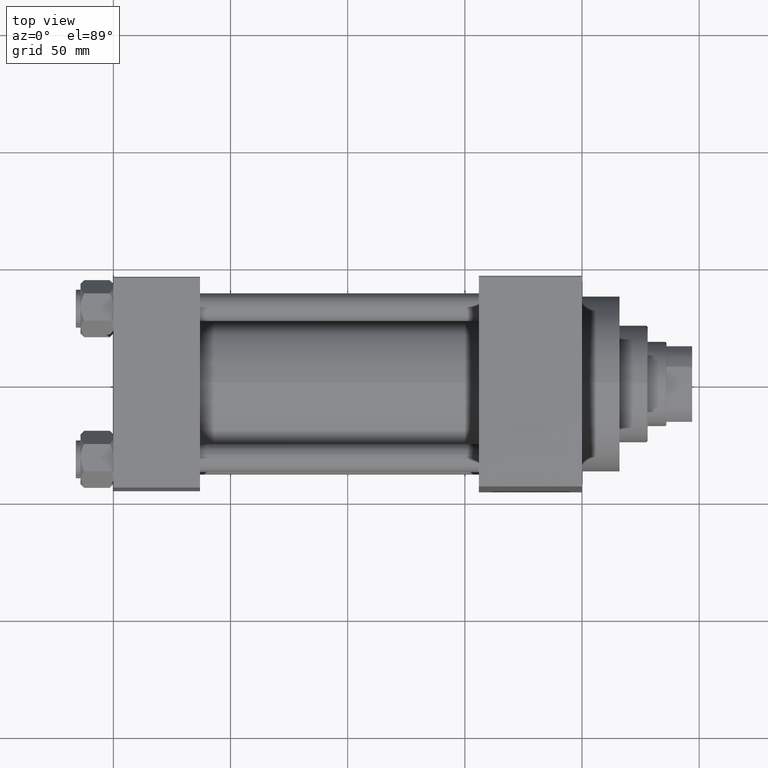
[diagram: clean part render]
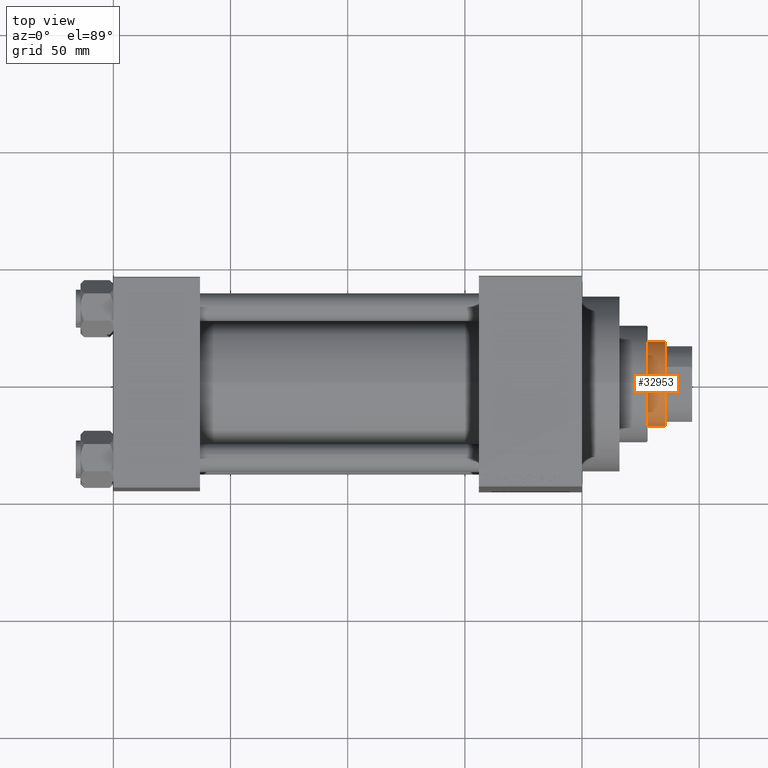
[diagram: same view with one face highlighted and labeled with its STEP entity id]
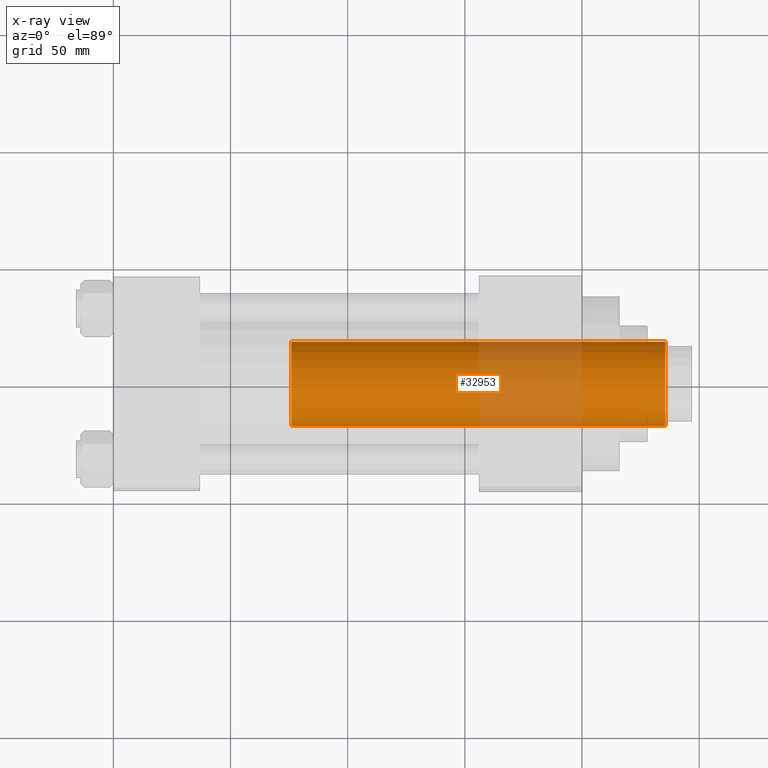
[diagram: x-ray of the same camera — body ghosted, the highlighted face saturated]
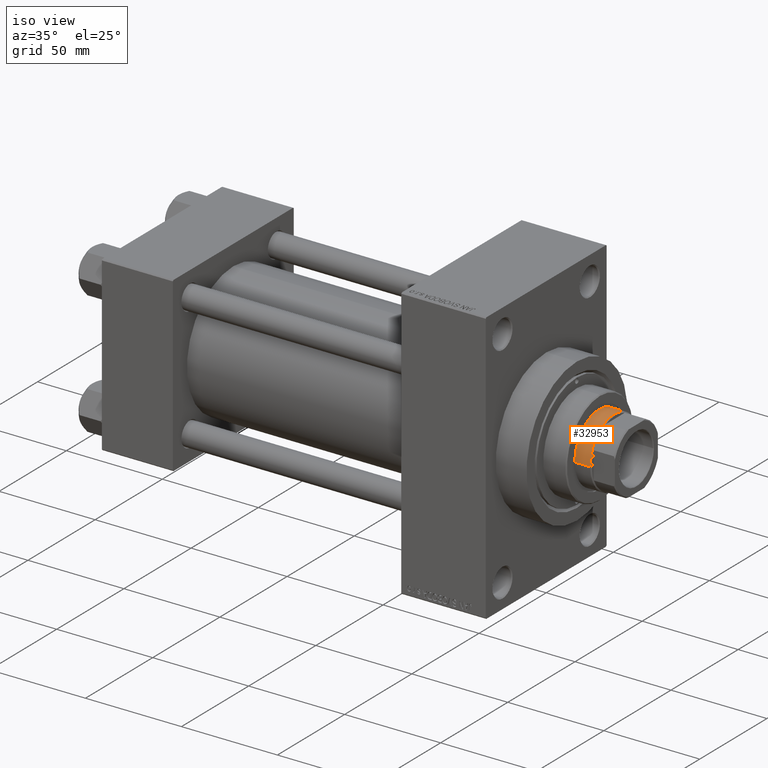
[diagram: same view with one face highlighted and labeled with its STEP entity id]
A machine part, top view. The second image highlights one B-rep face of the part: STEP entity #32953.
The next image is the same camera in x-ray: the body ghosted, the highlighted face saturated — about 28% of this face is hidden behind the body in this view.
A second angle (iso view) of the same face is appended — the face is thin or edge-on in the first view.
In plain terms, the highlighted cylindrical surface (partial cylindrical patch) has radius 18 mm, axis along (-1, 0, 0).
Its self-contained STEP definition (entity closure, byte-faithful):
#1280 = EDGE_LOOP ( 'NONE', ( #15122, #45662, #5915, #37861 ) ) ;
#1555 = AXIS2_PLACEMENT_3D ( 'NONE', #30686, #24438, #38846 ) ;
#4413 = DIRECTION ( 'NONE',  ( -0.000000000000000000, -0.000000000000000000, -1.000000000000000000 ) ) ;
#5915 = ORIENTED_EDGE ( 'NONE', *, *, #31854, .T. ) ;
#6263 = CARTESIAN_POINT ( 'NONE',  ( -18.00000000000000000, 0.000000000000000000, 198.5000000000000284 ) ) ;
#10951 = VECTOR ( 'NONE', #43327, 1000.000000000000000 ) ;
#15122 = ORIENTED_EDGE ( 'NONE', *, *, #46877, .F. ) ;
#15410 = DIRECTION ( 'NONE',  ( 1.000000000000000000, 0.000000000000000000, 0.000000000000000000 ) ) ;
#16634 = VECTOR ( 'NONE', #16867, 1000.000000000000000 ) ;
#16867 = DIRECTION ( 'NONE',  ( -0.000000000000000000, -0.000000000000000000, -1.000000000000000000 ) ) ;
#19027 = DIRECTION ( 'NONE',  ( -1.000000000000000000, 0.000000000000000000, 0.000000000000000000 ) ) ;
#22633 = FACE_OUTER_BOUND ( 'NONE', #1280, .T. ) ;
#23195 = AXIS2_PLACEMENT_3D ( 'NONE', #45397, #4413, #19027 ) ;
#24438 = DIRECTION ( 'NONE',  ( 0.000000000000000000, 0.000000000000000000, -1.000000000000000000 ) ) ;
#25410 = VERTEX_POINT ( 'NONE', #6263 ) ;
#26595 = EDGE_CURVE ( 'NONE', #42544, #25410, #34560, .T. ) ;
#27130 = DIRECTION ( 'NONE',  ( 0.000000000000000000, 0.000000000000000000, 1.000000000000000000 ) ) ;
#28354 = LINE ( 'NONE', #39158, #16634 ) ;
#29795 = CARTESIAN_POINT ( 'NONE',  ( 0.000000000000000000, 0.000000000000000000, 39.00000000000000000 ) ) ;
#30686 = CARTESIAN_POINT ( 'NONE',  ( 0.000000000000000000, 0.000000000000000000, 198.5000000000000284 ) ) ;
#30715 = CARTESIAN_POINT ( 'NONE',  ( -18.00000000000000000, 0.000000000000000000, 39.00000000000000000 ) ) ;
#30991 = CIRCLE ( 'NONE', #35580, 18.00000000000000000 ) ;
#31854 = EDGE_CURVE ( 'NONE', #25410, #47112, #44277, .T. ) ;
#32953 = ADVANCED_FACE ( 'NONE', ( #22633 ), #37269, .T. ) ;
#34560 = CIRCLE ( 'NONE', #1555, 18.00000000000000000 ) ;
#35580 = AXIS2_PLACEMENT_3D ( 'NONE', #29795, #27130, #15410 ) ;
#37269 = CYLINDRICAL_SURFACE ( 'NONE', #23195, 18.00000000000000000 ) ;
#37861 = ORIENTED_EDGE ( 'NONE', *, *, #41497, .T. ) ;
#38498 = VERTEX_POINT ( 'NONE', #45186 ) ;
#38846 = DIRECTION ( 'NONE',  ( 1.000000000000000000, 0.000000000000000000, 0.000000000000000000 ) ) ;
#39158 = CARTESIAN_POINT ( 'NONE',  ( 18.00000000000000000, 2.204364238465235428E-15, 199.0000000000000000 ) ) ;
#41497 = EDGE_CURVE ( 'NONE', #47112, #38498, #30991, .T. ) ;
#42544 = VERTEX_POINT ( 'NONE', #44485 ) ;
#43327 = DIRECTION ( 'NONE',  ( -0.000000000000000000, -0.000000000000000000, -1.000000000000000000 ) ) ;
#43793 = CARTESIAN_POINT ( 'NONE',  ( -18.00000000000000000, 0.000000000000000000, 199.0000000000000000 ) ) ;
#44277 = LINE ( 'NONE', #43793, #10951 ) ;
#44485 = CARTESIAN_POINT ( 'NONE',  ( 18.00000000000000000, 2.204364238465235428E-15, 198.5000000000000284 ) ) ;
#45186 = CARTESIAN_POINT ( 'NONE',  ( 18.00000000000000000, 2.204364238465235428E-15, 39.00000000000000000 ) ) ;
#45397 = CARTESIAN_POINT ( 'NONE',  ( 0.000000000000000000, 0.000000000000000000, 199.0000000000000000 ) ) ;
#45662 = ORIENTED_EDGE ( 'NONE', *, *, #26595, .T. ) ;
#46877 = EDGE_CURVE ( 'NONE', #42544, #38498, #28354, .T. ) ;
#47112 = VERTEX_POINT ( 'NONE', #30715 ) ;